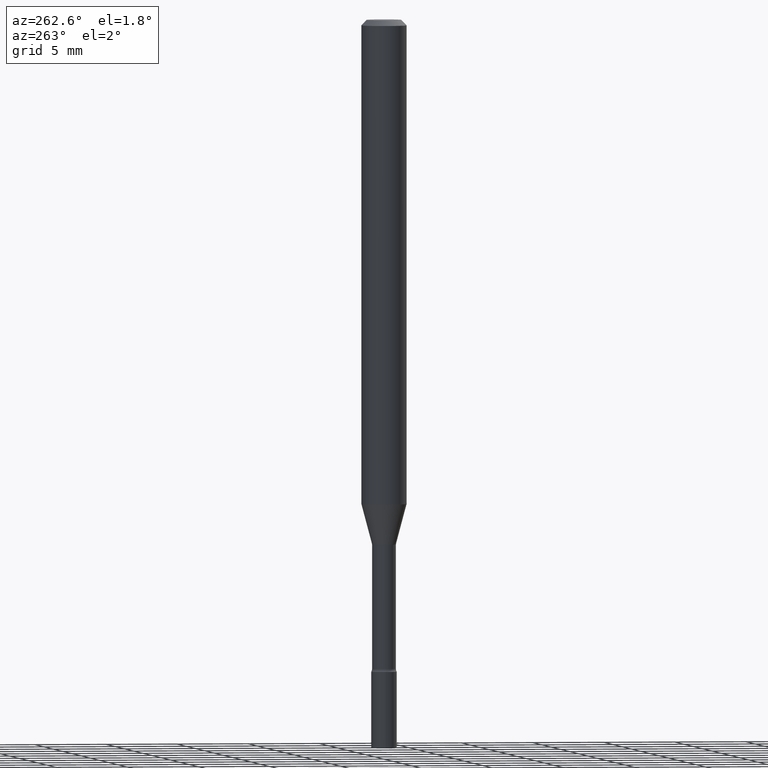
[diagram: clean part render]
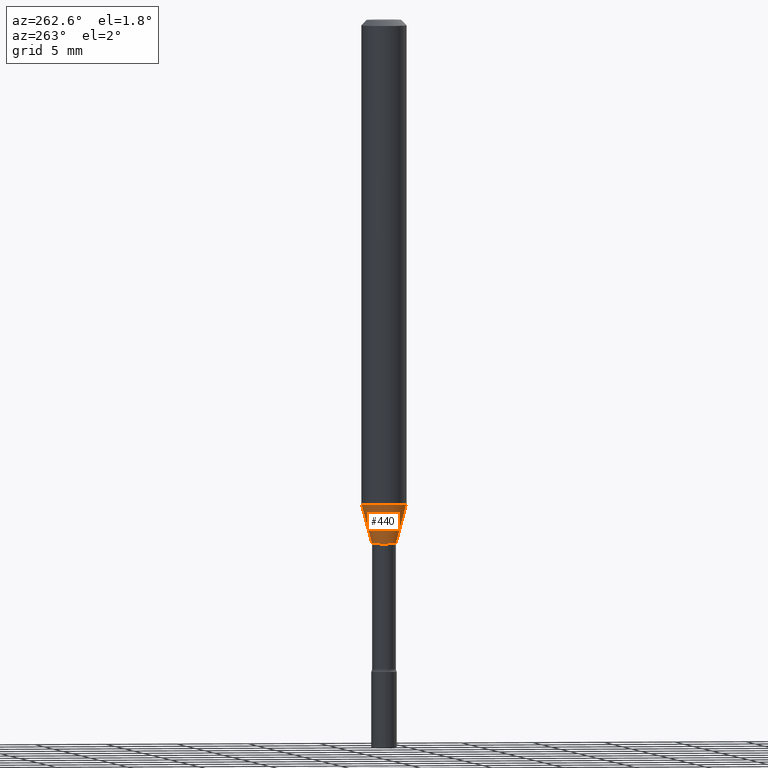
[diagram: same view with one face highlighted and labeled with its STEP entity id]
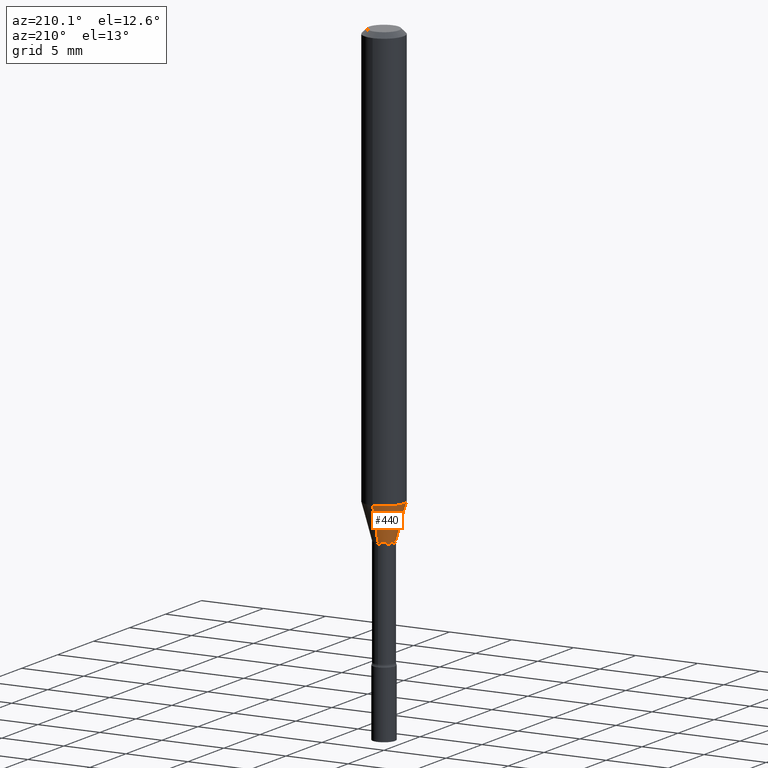
[diagram: same view with one face highlighted and labeled with its STEP entity id]
A machine part, auxiliary view. The second image highlights one B-rep face of the part: STEP entity #440.
A second angle (auxiliary view) of the same face is appended — the face is thin or edge-on in the first view.
In plain terms, the highlighted conical surface has half-angle 15 deg.
Its self-contained STEP definition (entity closure, byte-faithful):
#35 = FACE_OUTER_BOUND ( 'NONE', #339, .T. ) ;
#40 = AXIS2_PLACEMENT_3D ( 'NONE', #380, #494, #99 ) ;
#53 = CARTESIAN_POINT ( 'NONE',  ( 3.407447217031514627E-16, 0.03341111260565895330, -1.438092501787272992 ) ) ;
#74 = ORIENTED_EDGE ( 'NONE', *, *, #194, .T. ) ;
#86 = LINE ( 'NONE', #116, #476 ) ;
#99 = DIRECTION ( 'NONE',  ( -6.982962677686265922E-15, -1.000000000000000000, 4.370956789862821150E-15 ) ) ;
#101 = CIRCLE ( 'NONE', #426, 0.03341111260566397706 ) ;
#104 = CARTESIAN_POINT ( 'NONE',  ( 3.516840361018078842E-29, -5.021030161088979322E-15, -1.438092501787272992 ) ) ;
#116 = CARTESIAN_POINT ( 'NONE',  ( -2.333085523452895390E-16, -0.03341111260566900082, -1.438092501787272992 ) ) ;
#122 = VECTOR ( 'NONE', #205, 39.37007874015748143 ) ;
#186 = VERTEX_POINT ( 'NONE', #53 ) ;
#188 = DIRECTION ( 'NONE',  ( -6.982962677686266711E-15, -1.000000000000000000, 0.000000000000000000 ) ) ;
#190 = DIRECTION ( 'NONE',  ( -2.445489672359268108E-29, 3.491451457294160255E-15, 1.000000000000000000 ) ) ;
#194 = EDGE_CURVE ( 'NONE', #186, #385, #101, .T. ) ;
#195 = CARTESIAN_POINT ( 'NONE',  ( 3.516840361018078842E-29, -5.021030161088979322E-15, -1.438092501787272992 ) ) ;
#196 = CIRCLE ( 'NONE', #40, 0.06250000000000000000 ) ;
#205 = DIRECTION ( 'NONE',  ( 1.839019923739599526E-15, 0.2588190451025248473, 0.9659258262890670910 ) ) ;
#221 = ORIENTED_EDGE ( 'NONE', *, *, #271, .F. ) ;
#233 = CARTESIAN_POINT ( 'NONE',  ( -4.364351673553592768E-16, -0.06250000000000467681, -1.329531296095961101 ) ) ;
#251 = DIRECTION ( 'NONE',  ( -6.982962677686266711E-15, -1.000000000000000000, 0.000000000000000000 ) ) ;
#253 = DIRECTION ( 'NONE',  ( -2.445489672359268108E-29, 3.491451457294160255E-15, 1.000000000000000000 ) ) ;
#271 = EDGE_CURVE ( 'NONE', #512, #514, #196, .T. ) ;
#302 = CARTESIAN_POINT ( 'NONE',  ( -2.333085523452895390E-16, -0.03341111260566900082, -1.438092501787272992 ) ) ;
#305 = AXIS2_PLACEMENT_3D ( 'NONE', #195, #190, #188 ) ;
#339 = EDGE_LOOP ( 'NONE', ( #434, #74, #495, #221 ) ) ;
#350 = EDGE_CURVE ( 'NONE', #186, #512, #416, .T. ) ;
#377 = CARTESIAN_POINT ( 'NONE',  ( 2.374002335562076701E-16, 0.03341111260565896024, -1.438092501787272992 ) ) ;
#380 = CARTESIAN_POINT ( 'NONE',  ( 3.251355053681105951E-29, -4.641993981272437762E-15, -1.329531296095961546 ) ) ;
#385 = VERTEX_POINT ( 'NONE', #302 ) ;
#395 = DIRECTION ( 'NONE',  ( -1.807323732225329350E-15, -0.2588190451025180194, 0.9659258262890689783 ) ) ;
#416 = LINE ( 'NONE', #377, #122 ) ;
#426 = AXIS2_PLACEMENT_3D ( 'NONE', #104, #253, #251 ) ;
#430 = EDGE_CURVE ( 'NONE', #385, #514, #86, .T. ) ;
#434 = ORIENTED_EDGE ( 'NONE', *, *, #350, .F. ) ;
#440 = ADVANCED_FACE ( 'NONE', ( #35 ), #490, .T. ) ;
#476 = VECTOR ( 'NONE', #395, 39.37007874015749564 ) ;
#490 = CONICAL_SURFACE ( 'NONE', #305, 0.03341111260566397706, 0.2617993877991501850 ) ;
#494 = DIRECTION ( 'NONE',  ( -2.445489672359268108E-29, 3.491451457294160255E-15, 1.000000000000000000 ) ) ;
#495 = ORIENTED_EDGE ( 'NONE', *, *, #430, .T. ) ;
#512 = VERTEX_POINT ( 'NONE', #515 ) ;
#514 = VERTEX_POINT ( 'NONE', #233 ) ;
#515 = CARTESIAN_POINT ( 'NONE',  ( 4.440892098500948609E-16, 0.06249999999999532319, -1.329531296095961768 ) ) ;